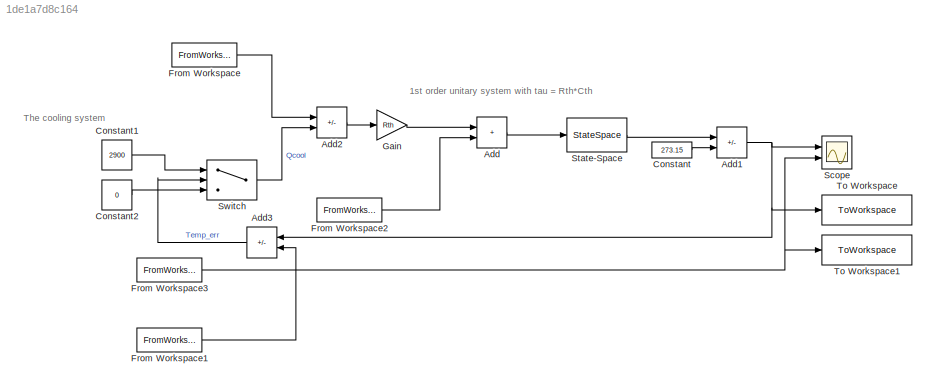
MODEL slx_1de1a7d8c164
KIND model
CONFIG AbsTol = auto
CONFIG EnableMultiTasking = off
CONFIG FixedStep = 1
CONFIG MaxStep = auto
CONFIG MinStep = auto
CONFIG RelTol = 1e-3
CONFIG SampleTimeConstraint = Unconstrained
CONFIG SolverName = FixedStepAuto
CONFIG StartTime = Qloss.time(1)
CONFIG StopTime = Qloss.time(end)
BLOCK [Sum] Add
  IconShape = rectangular
  Ports = [2, 1]
BLOCK [Sum] Add1
  IconShape = rectangular
  Inputs = +-
  Ports = [2, 1]
BLOCK [Sum] Add2
  IconShape = rectangular
  Inputs = +-
  Ports = [2, 1]
BLOCK [Sum] Add3
  IconShape = rectangular
  Inputs = +-
  NameLocation = top
  Ports = [2, 1]
BLOCK [Constant] Constant
  Value = 273.15
BLOCK [Constant] Constant1
  Value = 2900
BLOCK [Constant] Constant2
  Value = 0
BLOCK [FromWorkspace] From Workspace
  SampleTime = 1
  VariableName = Qloss
BLOCK [FromWorkspace] From Workspace1
  SampleTime = 1
  VariableName = Tcool
BLOCK [FromWorkspace] From Workspace2
  SampleTime = 1
  VariableName = T_amb
BLOCK [FromWorkspace] From Workspace3
  SampleTime = 1
  VariableName = RealTemp
BLOCK [Gain] Gain
  Gain = Rth
BLOCK [Scope] Scope
  Floating = off
  NumInputPorts = 2
  Ports = [2]
  ScopeSpecificationString = Simulink.scopes.TimeScopeBlockCfg('CurrentConfiguration', extmgr.ConfigurationSet(extmgr.Configuration('Core','General UI',true),extmgr.Configuration('Core','Source UI',true),extmgr.Configuration('Sources','WiredSimulink',true),extmgr.Configuration('Visuals','Time Domain',true,'SerializedDisplays',{struct('MinYLimReal','20.5134','MaxYLimReal','54.17169','YLabelReal','','MinYLimMag','20.5134','MaxY...<+1417ch>
BLOCK [StateSpace] State-Space
  A = -1/(Rth.*Cth)
  B = 1/(Rth.*Cth)
  D = 0
  InitialCondition = RealTemp.Data(1) + CtoK
  Ports = [1, 1]
BLOCK [Switch] Switch
  Criteria = u2 > Threshold
  InputSameDT = off
  SaturateOnIntegerOverflow = off
BLOCK [ToWorkspace] To Workspace
  FixptAsFi = on
  MaxDataPoints = inf
  Ports = [1]
  SampleTime = -1
  SaveFormat = Timeseries
  VariableName = Model_Temp_Sim
BLOCK [ToWorkspace] To Workspace1
  FixptAsFi = on
  MaxDataPoints = inf
  Ports = [1]
  SampleTime = -1
  SaveFormat = Timeseries
  VariableName = Real_Temp_Meas
ANNOTATION (root): 1st order unitary system with tau = Rth*Cth
ANNOTATION (root): The cooling system
NET Add1:1 -> Add3:1, Scope:1, To Workspace:1
LINE Add2:1 -> Gain:1
LINE Add3:1 -> Switch:2
LINE Add:1 -> State-Space:1
LINE Constant1:1 -> Switch:1
LINE Constant2:1 -> Switch:3
LINE Constant:1 -> Add1:2
LINE From Workspace1:1 -> Add3:2
LINE From Workspace2:1 -> Add:2
NET From Workspace3:1 -> Scope:2, To Workspace1:1
LINE From Workspace:1 -> Add2:1
LINE Gain:1 -> Add:1
LINE State-Space:1 -> Add1:1
LINE Switch:1 -> Add2:2
note: NET lines group one-source signal fan-out (src -> all destinations, sorted); 1:1 wires keep LINE
